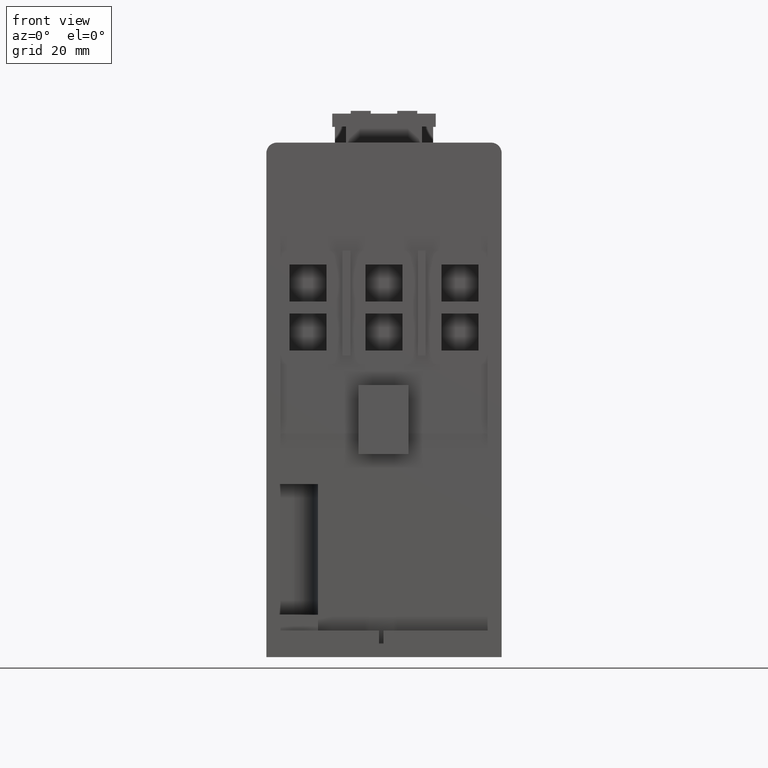
[diagram: clean part render]
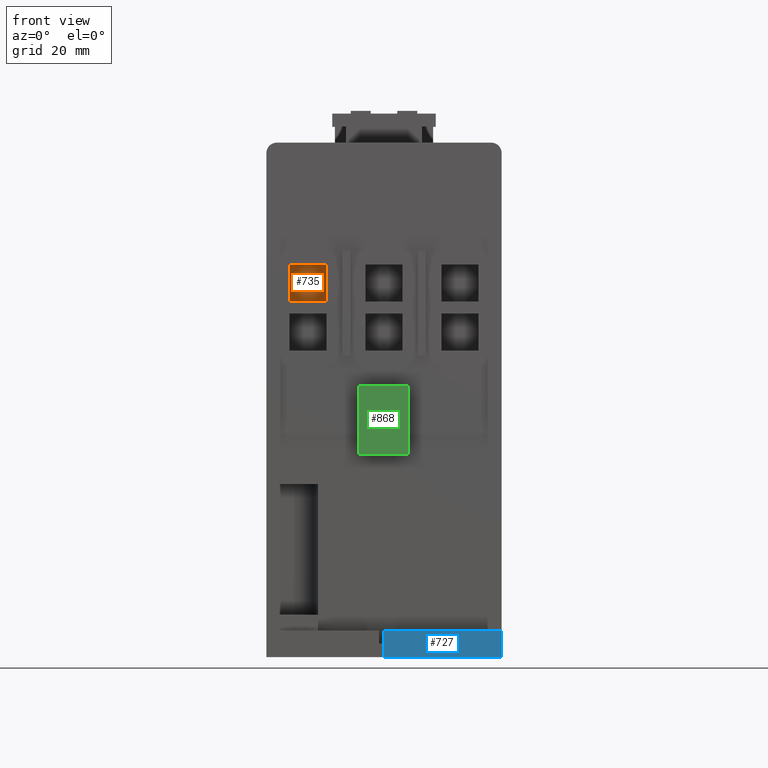
[diagram: same view with three faces highlighted in distinct colors, each labeled with its STEP entity id]
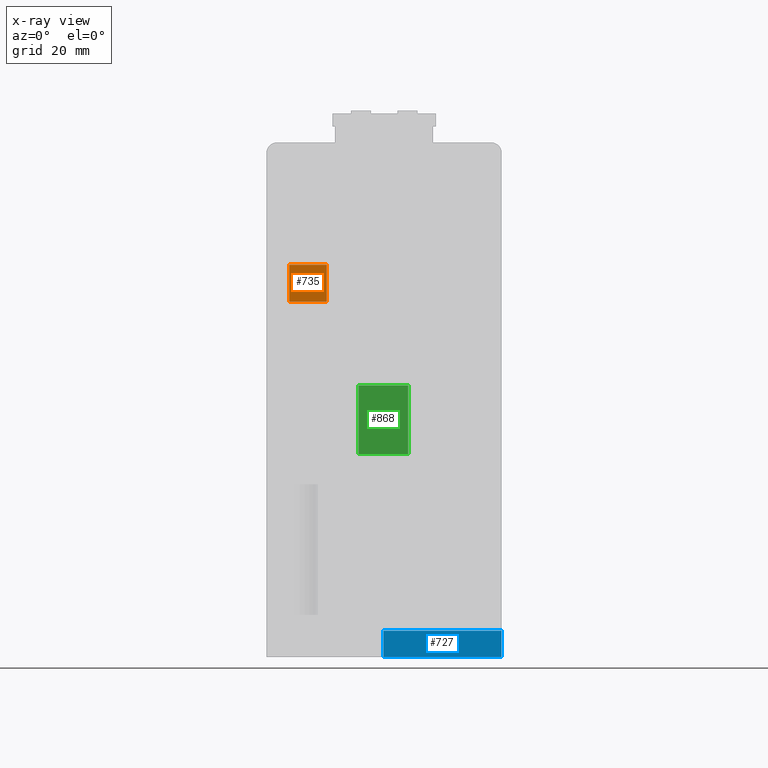
[diagram: x-ray of the same camera — body ghosted, the three highlighted faces saturated]
A machine part, front view with three faces highlighted in distinct colors.
The next image is the same camera in x-ray (body ghosted, the three faces saturated) — at least one of them is partly hidden behind the body in this view.
Their STEP definitions:

[orange] entity #735 — the highlighted planar face has unit normal (0, 1, 0).
#358=FACE_OUTER_BOUND('',#1681,.T.);
#735=ADVANCED_FACE('',(#358),#1121,.F.);
#1121=PLANE('',#7769);
#1681=EDGE_LOOP('',(#3002,#3003,#3004,#3005));
#3002=ORIENTED_EDGE('',*,*,#5379,.T.);
#3003=ORIENTED_EDGE('',*,*,#5382,.T.);
#3004=ORIENTED_EDGE('',*,*,#5384,.T.);
#3005=ORIENTED_EDGE('',*,*,#5385,.T.);
#4529=VERTEX_POINT('',#11364);
#4530=VERTEX_POINT('',#11366);
#4531=VERTEX_POINT('',#11370);
#4532=VERTEX_POINT('',#11374);
#5379=EDGE_CURVE('',#4530,#4529,#6321,.T.);
#5382=EDGE_CURVE('',#4529,#4531,#6324,.T.);
#5384=EDGE_CURVE('',#4531,#4532,#6326,.T.);
#5385=EDGE_CURVE('',#4532,#4530,#6327,.T.);
#6321=LINE('',#11365,#7240);
#6324=LINE('',#11371,#7243);
#6326=LINE('',#11375,#7245);
#6327=LINE('',#11377,#7246);
#7240=VECTOR('',#9134,1.);
#7243=VECTOR('',#9139,1.);
#7245=VECTOR('',#9143,1.);
#7246=VECTOR('',#9146,1.);
#7769=AXIS2_PLACEMENT_3D('',#11379,#9149,#9150);
#9134=DIRECTION('',(0.,0.,1.));
#9139=DIRECTION('',(-1.,0.,0.));
#9143=DIRECTION('',(0.,0.,-1.));
#9146=DIRECTION('',(1.,0.,0.));
#9149=DIRECTION('',(0.,1.,0.));
#9150=DIRECTION('',(0.,0.,-1.));
#11364=CARTESIAN_POINT('',(-10.9,-21.6,69.3500000000002));
#11365=CARTESIAN_POINT('',(-10.9,-21.6,62.3500000000002));
#11366=CARTESIAN_POINT('',(-10.9,-21.6,62.3500000000002));
#11370=CARTESIAN_POINT('',(-17.9,-21.6,69.3500000000002));
#11371=CARTESIAN_POINT('',(-10.9,-21.6,69.3500000000002));
#11374=CARTESIAN_POINT('',(-17.9,-21.6,62.3500000000002));
#11375=CARTESIAN_POINT('',(-17.9,-21.6,69.3500000000002));
#11377=CARTESIAN_POINT('',(-17.9,-21.6,62.3500000000002));
#11379=CARTESIAN_POINT('',(-10.9,-21.6,69.3500000000002));

[blue] entity #727 — the highlighted planar face has unit normal (0, -1, 0).
#350=FACE_OUTER_BOUND('',#1673,.T.);
#727=ADVANCED_FACE('',(#350),#1113,.T.);
#1113=PLANE('',#7761);
#1673=EDGE_LOOP('',(#2966,#2967,#2968,#2969));
#2966=ORIENTED_EDGE('',*,*,#5371,.F.);
#2967=ORIENTED_EDGE('',*,*,#4887,.T.);
#2968=ORIENTED_EDGE('',*,*,#4738,.T.);
#2969=ORIENTED_EDGE('',*,*,#5131,.F.);
#4043=VERTEX_POINT('',#10084);
#4044=VERTEX_POINT('',#10086);
#4172=VERTEX_POINT('',#10380);
#4365=VERTEX_POINT('',#10845);
#4738=EDGE_CURVE('',#4044,#4043,#5761,.T.);
#4887=EDGE_CURVE('',#4172,#4044,#5901,.T.);
#5131=EDGE_CURVE('',#4365,#4043,#6121,.T.);
#5371=EDGE_CURVE('',#4172,#4365,#6313,.T.);
#5761=LINE('',#10085,#6680);
#5901=LINE('',#10379,#6820);
#6121=LINE('',#10846,#7040);
#6313=LINE('',#11349,#7232);
#6680=VECTOR('',#8106,1.);
#6820=VECTOR('',#8298,1.);
#7040=VECTOR('',#8624,1.);
#7232=VECTOR('',#9118,1.);
#7761=AXIS2_PLACEMENT_3D('',#11350,#9119,#9120);
#8106=DIRECTION('',(0.,0.,1.));
#8298=DIRECTION('',(1.,0.,0.));
#8624=DIRECTION('',(1.,0.,0.));
#9118=DIRECTION('',(1.17145334231628E-015,0.,1.));
#9119=DIRECTION('',(0.,-1.,0.));
#9120=DIRECTION('',(0.,0.,1.));
#10084=CARTESIAN_POINT('',(22.3,-36.6,6.93889390390723E-015));
#10085=CARTESIAN_POINT('',(22.3,-36.6,-4.99999999999999));
#10086=CARTESIAN_POINT('',(22.3,-36.6,-4.99999999999999));
#10379=CARTESIAN_POINT('',(-22.3,-36.6,-4.99999999999999));
#10380=CARTESIAN_POINT('',(-0.100000000000005,-36.6,-4.99999999999999));
#10845=CARTESIAN_POINT('',(-0.100000000000003,-36.6,6.93889390390723E-015));
#10846=CARTESIAN_POINT('',(-22.3,-36.6,6.93889390390723E-015));
#11349=CARTESIAN_POINT('',(-0.100000000000006,-36.6,-5.50000000000001));
#11350=CARTESIAN_POINT('',(-22.3,-36.6,-4.99999999999999));

[green] entity #868 — the highlighted planar face has unit normal (0, -1, 0).
#478=FACE_OUTER_BOUND('',#1827,.T.);
#868=ADVANCED_FACE('',(#478),#1242,.T.);
#1242=PLANE('',#7923);
#1827=EDGE_LOOP('',(#3570,#3571,#3572,#3573));
#3570=ORIENTED_EDGE('',*,*,#5571,.T.);
#3571=ORIENTED_EDGE('',*,*,#5569,.T.);
#3572=ORIENTED_EDGE('',*,*,#5572,.T.);
#3573=ORIENTED_EDGE('',*,*,#5573,.T.);
#4616=VERTEX_POINT('',#11777);
#4617=VERTEX_POINT('',#11779);
#4618=VERTEX_POINT('',#11783);
#4619=VERTEX_POINT('',#11785);
#5569=EDGE_CURVE('',#4617,#4616,#6490,.T.);
#5571=EDGE_CURVE('',#4618,#4617,#6492,.T.);
#5572=EDGE_CURVE('',#4616,#4619,#6493,.T.);
#5573=EDGE_CURVE('',#4619,#4618,#6494,.T.);
#6490=LINE('',#11778,#7409);
#6492=LINE('',#11782,#7411);
#6493=LINE('',#11784,#7412);
#6494=LINE('',#11786,#7413);
#7409=VECTOR('',#9617,1.);
#7411=VECTOR('',#9621,1.);
#7412=VECTOR('',#9622,1.);
#7413=VECTOR('',#9623,1.);
#7923=AXIS2_PLACEMENT_3D('',#11787,#9624,#9625);
#9617=DIRECTION('',(-1.,0.,0.));
#9621=DIRECTION('',(-1.32833245276637E-016,2.01906532820488E-014,1.));
#9622=DIRECTION('',(0.,-2.01906532820488E-014,-1.));
#9623=DIRECTION('',(1.,0.,0.));
#9624=DIRECTION('',(0.,-1.,2.01906532820488E-014));
#9625=DIRECTION('',(0.,-2.019218126037E-014,-1.));
#11777=CARTESIAN_POINT('',(-4.8,-38.3999999999991,46.5000000000006));
#11778=CARTESIAN_POINT('',(4.6,-38.3999999999991,46.5000000000006));
#11779=CARTESIAN_POINT('',(4.6,-38.3999999999991,46.5000000000006));
#11782=CARTESIAN_POINT('',(4.6,-38.3999999999994,33.4405925273902));
#11783=CARTESIAN_POINT('',(4.6,-38.3999999999994,33.4405925273902));
#11784=CARTESIAN_POINT('',(-4.8,-38.3999999999991,46.5000000000006));
#11785=CARTESIAN_POINT('',(-4.8,-38.3999999999994,33.4405925273902));
#11786=CARTESIAN_POINT('',(-4.8,-38.3999999999994,33.4405925273902));
#11787=CARTESIAN_POINT('',(4.6,-38.3999999999991,46.5000000000006));